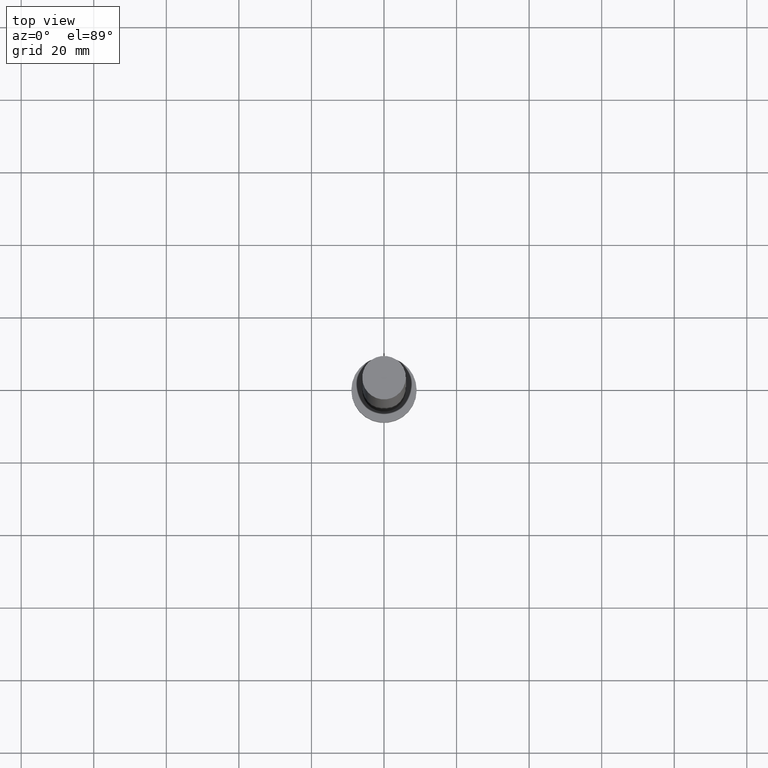
[diagram: clean part render]
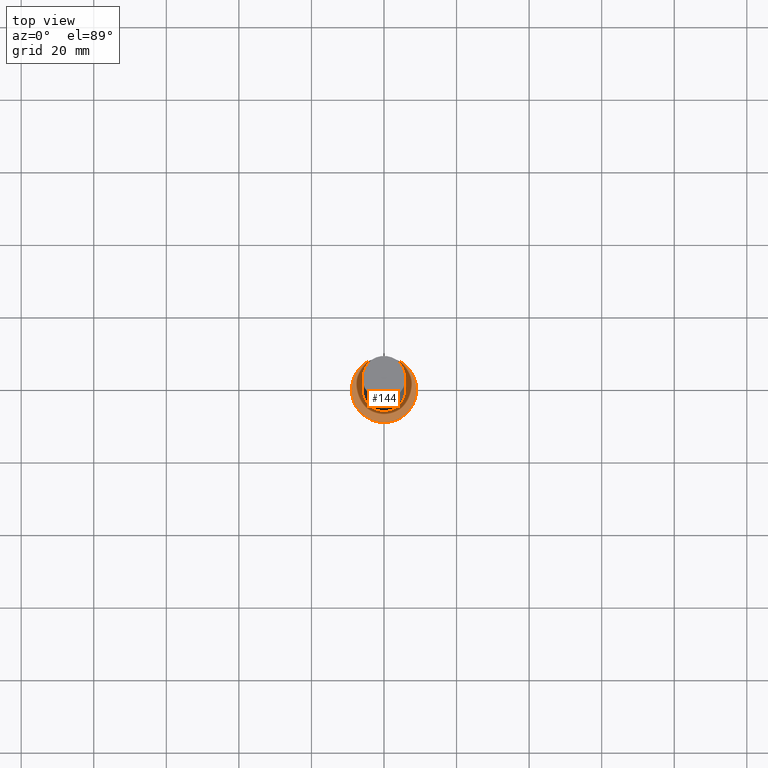
[diagram: same view with one face highlighted and labeled with its STEP entity id]
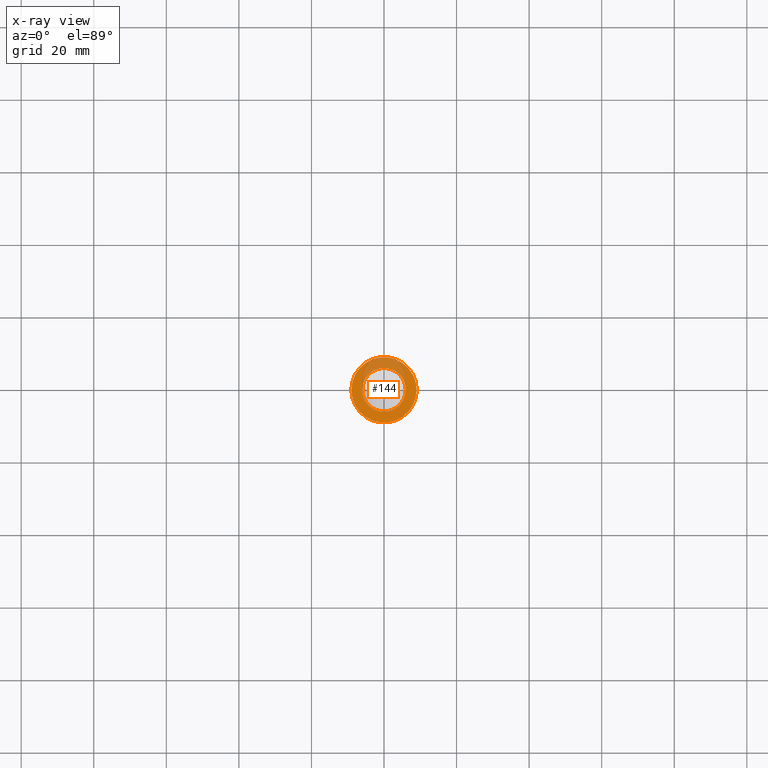
[diagram: x-ray of the same camera — body ghosted, the highlighted face saturated]
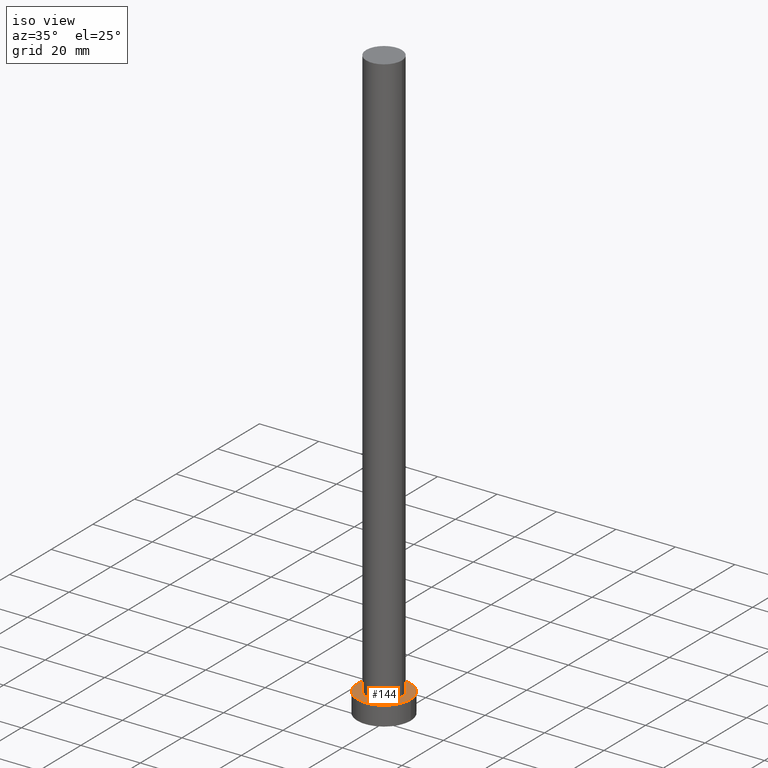
[diagram: same view with one face highlighted and labeled with its STEP entity id]
A machine part, top view. The second image highlights one B-rep face of the part: STEP entity #144.
The next image is the same camera in x-ray: the body ghosted, the highlighted face saturated — about 28% of this face is hidden behind the body in this view.
A second angle (iso view) of the same face is appended — the face is thin or edge-on in the first view.
In plain terms, the highlighted planar face has unit normal (0, 0, 1).
Its self-contained STEP definition (entity closure, byte-faithful):
#1 = VERTEX_POINT ( 'NONE', #23 ) ;
#8 = AXIS2_PLACEMENT_3D ( 'NONE', #98, #82, #218 ) ;
#11 = CARTESIAN_POINT ( 'NONE',  ( 0.000000000000000000, 0.000000000000000000, 6.500000000000000000 ) ) ;
#19 = ORIENTED_EDGE ( 'NONE', *, *, #47, .T. ) ;
#22 = VERTEX_POINT ( 'NONE', #101 ) ;
#23 = CARTESIAN_POINT ( 'NONE',  ( -9.000000000000000000, 0.000000000000000000, 6.500000000000000000 ) ) ;
#28 = DIRECTION ( 'NONE',  ( 1.000000000000000000, 0.000000000000000000, 0.000000000000000000 ) ) ;
#30 = CIRCLE ( 'NONE', #8, 6.000000000000000888 ) ;
#34 = FACE_OUTER_BOUND ( 'NONE', #199, .T. ) ;
#39 = ORIENTED_EDGE ( 'NONE', *, *, #112, .F. ) ;
#41 = DIRECTION ( 'NONE',  ( 0.000000000000000000, 0.000000000000000000, 1.000000000000000000 ) ) ;
#47 = EDGE_CURVE ( 'NONE', #1, #22, #170, .T. ) ;
#53 = EDGE_CURVE ( 'NONE', #209, #224, #117, .T. ) ;
#56 = CARTESIAN_POINT ( 'NONE',  ( -6.000000000000000888, 0.000000000000000000, 6.500000000000000000 ) ) ;
#81 = CARTESIAN_POINT ( 'NONE',  ( 0.000000000000000000, 0.000000000000000000, 6.500000000000000000 ) ) ;
#82 = DIRECTION ( 'NONE',  ( 0.000000000000000000, 0.000000000000000000, 1.000000000000000000 ) ) ;
#84 = CIRCLE ( 'NONE', #133, 9.000000000000000000 ) ;
#88 = CARTESIAN_POINT ( 'NONE',  ( 0.000000000000000000, 0.000000000000000000, 6.500000000000000000 ) ) ;
#98 = CARTESIAN_POINT ( 'NONE',  ( 0.000000000000000000, 0.000000000000000000, 6.500000000000000000 ) ) ;
#101 = CARTESIAN_POINT ( 'NONE',  ( 9.000000000000000000, 1.102182119232617517E-15, 6.500000000000000000 ) ) ;
#110 = AXIS2_PLACEMENT_3D ( 'NONE', #222, #41, #195 ) ;
#112 = EDGE_CURVE ( 'NONE', #224, #209, #30, .T. ) ;
#117 = CIRCLE ( 'NONE', #110, 6.000000000000000888 ) ;
#128 = ORIENTED_EDGE ( 'NONE', *, *, #247, .T. ) ;
#133 = AXIS2_PLACEMENT_3D ( 'NONE', #81, #177, #28 ) ;
#135 = FACE_BOUND ( 'NONE', #163, .T. ) ;
#140 = DIRECTION ( 'NONE',  ( 0.000000000000000000, 0.000000000000000000, 1.000000000000000000 ) ) ;
#144 = ADVANCED_FACE ( 'NONE', ( #135, #34 ), #204, .T. ) ;
#163 = EDGE_LOOP ( 'NONE', ( #226, #39 ) ) ;
#168 = DIRECTION ( 'NONE',  ( 1.000000000000000000, 0.000000000000000000, -0.000000000000000000 ) ) ;
#170 = CIRCLE ( 'NONE', #210, 9.000000000000000000 ) ;
#177 = DIRECTION ( 'NONE',  ( 0.000000000000000000, 0.000000000000000000, 1.000000000000000000 ) ) ;
#184 = AXIS2_PLACEMENT_3D ( 'NONE', #88, #140, #168 ) ;
#185 = DIRECTION ( 'NONE',  ( 0.000000000000000000, 0.000000000000000000, 1.000000000000000000 ) ) ;
#193 = CARTESIAN_POINT ( 'NONE',  ( 6.000000000000000888, 7.347880794884120722E-16, 6.500000000000000000 ) ) ;
#195 = DIRECTION ( 'NONE',  ( 1.000000000000000000, 0.000000000000000000, 0.000000000000000000 ) ) ;
#199 = EDGE_LOOP ( 'NONE', ( #19, #128 ) ) ;
#204 = PLANE ( 'NONE',  #184 ) ;
#209 = VERTEX_POINT ( 'NONE', #56 ) ;
#210 = AXIS2_PLACEMENT_3D ( 'NONE', #11, #185, #250 ) ;
#218 = DIRECTION ( 'NONE',  ( 1.000000000000000000, 0.000000000000000000, 0.000000000000000000 ) ) ;
#222 = CARTESIAN_POINT ( 'NONE',  ( 0.000000000000000000, 0.000000000000000000, 6.500000000000000000 ) ) ;
#224 = VERTEX_POINT ( 'NONE', #193 ) ;
#226 = ORIENTED_EDGE ( 'NONE', *, *, #53, .F. ) ;
#247 = EDGE_CURVE ( 'NONE', #22, #1, #84, .T. ) ;
#250 = DIRECTION ( 'NONE',  ( 1.000000000000000000, 0.000000000000000000, 0.000000000000000000 ) ) ;